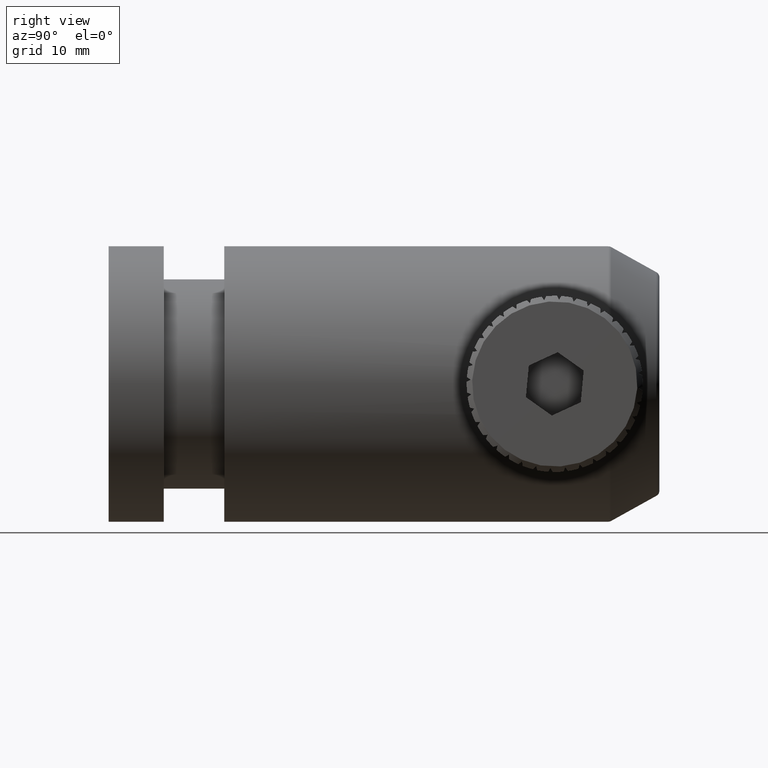
[diagram: clean part render]
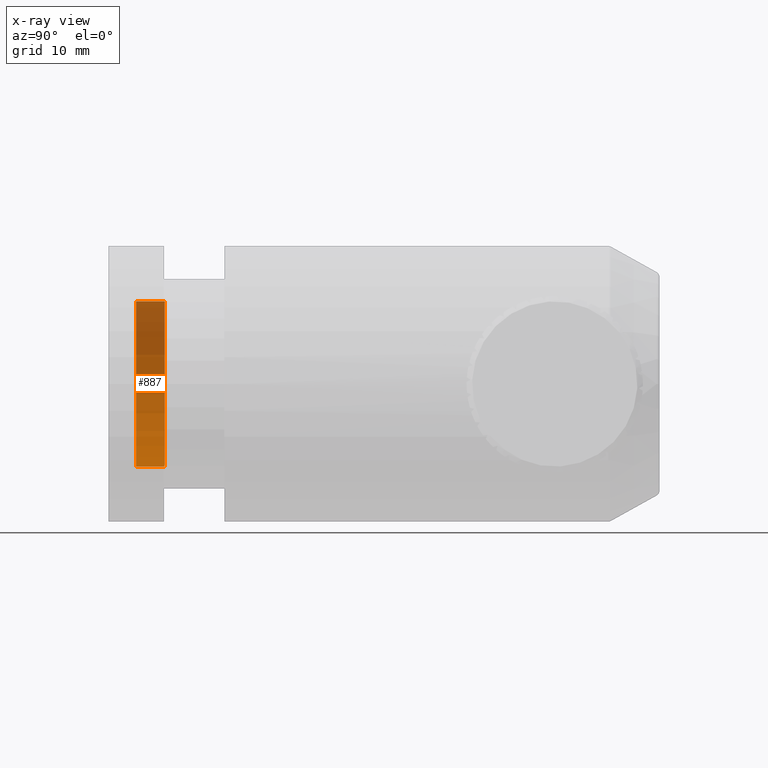
[diagram: x-ray — body ghosted, one internal face saturated and labeled with its STEP entity id]
A machine part, right view, then the same camera in x-ray: the body is ghosted and one INTERNAL B-rep face — a face not visible from any outside direction — is saturated and labeled: STEP entity #887.
In plain terms, the highlighted cylindrical surface (partial cylindrical patch) has radius 7.5 mm, axis along (-0, -1, -0).
Its self-contained STEP definition (entity closure, byte-faithful):
#110 = ORIENTED_EDGE ( 'NONE', *, *, #8353, .F. ) ;
#598 = VERTEX_POINT ( 'NONE', #4017 ) ;
#675 = CIRCLE ( 'NONE', #7446, 7.500000000000000000 ) ;
#887 = ADVANCED_FACE ( 'NONE', ( #4484 ), #6714, .F. ) ;
#908 = AXIS2_PLACEMENT_3D ( 'NONE', #5285, #4542, #7273 ) ;
#2317 = CARTESIAN_POINT ( 'NONE',  ( -3.204778668925408969, -6.713612059609836535, 7.500000000000000000 ) ) ;
#2470 = DIRECTION ( 'NONE',  ( 0.0000000000000000000, 0.0000000000000000000, -1.000000000000000000 ) ) ;
#2775 = EDGE_CURVE ( 'NONE', #4649, #7026, #675, .T. ) ;
#2956 = EDGE_LOOP ( 'NONE', ( #4731, #9049, #110, #8274 ) ) ;
#3291 = LINE ( 'NONE', #7684, #8741 ) ;
#3595 = CARTESIAN_POINT ( 'NONE',  ( -3.204778668925409857, -6.713612059609836535, -7.703719777548943412E-31 ) ) ;
#3629 = VERTEX_POINT ( 'NONE', #5528 ) ;
#4017 = CARTESIAN_POINT ( 'NONE',  ( -3.204778668925408969, -9.313612059609836180, 7.500000000000000000 ) ) ;
#4484 = FACE_OUTER_BOUND ( 'NONE', #2956, .T. ) ;
#4542 = DIRECTION ( 'NONE',  ( 0.0000000000000000000, 1.000000000000000000, 0.0000000000000000000 ) ) ;
#4649 = VERTEX_POINT ( 'NONE', #5721 ) ;
#4731 = ORIENTED_EDGE ( 'NONE', *, *, #2775, .T. ) ;
#4900 = DIRECTION ( 'NONE',  ( 0.0000000000000000000, 1.000000000000000000, 0.0000000000000000000 ) ) ;
#5127 = LINE ( 'NONE', #7256, #6614 ) ;
#5285 = CARTESIAN_POINT ( 'NONE',  ( -3.204778668925409857, -9.313612059609836180, -7.703719777548943412E-31 ) ) ;
#5528 = CARTESIAN_POINT ( 'NONE',  ( -3.204778668925409857, -9.313612059609836180, -7.500000000000000000 ) ) ;
#5721 = CARTESIAN_POINT ( 'NONE',  ( -3.204778668925409857, -6.713612059609836535, -7.500000000000000000 ) ) ;
#5815 = AXIS2_PLACEMENT_3D ( 'NONE', #8777, #7362, #2470 ) ;
#5914 = DIRECTION ( 'NONE',  ( -0.0000000000000000000, -1.000000000000000000, -0.0000000000000000000 ) ) ;
#6614 = VECTOR ( 'NONE', #5914, 1000.000000000000000 ) ;
#6714 = CYLINDRICAL_SURFACE ( 'NONE', #5815, 7.500000000000000000 ) ;
#7026 = VERTEX_POINT ( 'NONE', #2317 ) ;
#7062 = EDGE_CURVE ( 'NONE', #4649, #3629, #5127, .T. ) ;
#7256 = CARTESIAN_POINT ( 'NONE',  ( -3.204778668925409857, 0.1863879403901629872, -7.500000000000000000 ) ) ;
#7273 = DIRECTION ( 'NONE',  ( 0.0000000000000000000, 0.0000000000000000000, 1.000000000000000000 ) ) ;
#7362 = DIRECTION ( 'NONE',  ( -0.0000000000000000000, -1.000000000000000000, -0.0000000000000000000 ) ) ;
#7446 = AXIS2_PLACEMENT_3D ( 'NONE', #3595, #4900, #7851 ) ;
#7678 = CIRCLE ( 'NONE', #908, 7.500000000000000000 ) ;
#7684 = CARTESIAN_POINT ( 'NONE',  ( -3.204778668925408969, 0.1863879403901629872, 7.500000000000000000 ) ) ;
#7851 = DIRECTION ( 'NONE',  ( 0.0000000000000000000, 0.0000000000000000000, 1.000000000000000000 ) ) ;
#8265 = DIRECTION ( 'NONE',  ( -0.0000000000000000000, -1.000000000000000000, -0.0000000000000000000 ) ) ;
#8274 = ORIENTED_EDGE ( 'NONE', *, *, #7062, .F. ) ;
#8353 = EDGE_CURVE ( 'NONE', #3629, #598, #7678, .T. ) ;
#8536 = EDGE_CURVE ( 'NONE', #7026, #598, #3291, .T. ) ;
#8741 = VECTOR ( 'NONE', #8265, 1000.000000000000000 ) ;
#8777 = CARTESIAN_POINT ( 'NONE',  ( -3.204778668925409857, 0.1863879403901629872, -7.703719777548943412E-31 ) ) ;
#9049 = ORIENTED_EDGE ( 'NONE', *, *, #8536, .T. ) ;